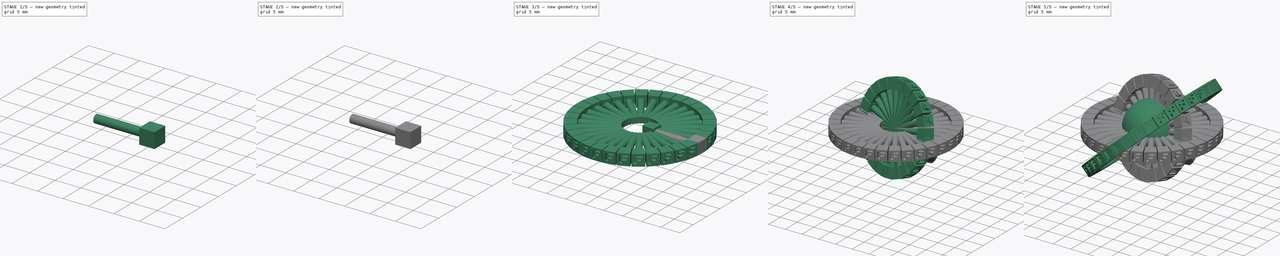
[diagram: build sequence overview — one tinted view per stage of 5, left to right]
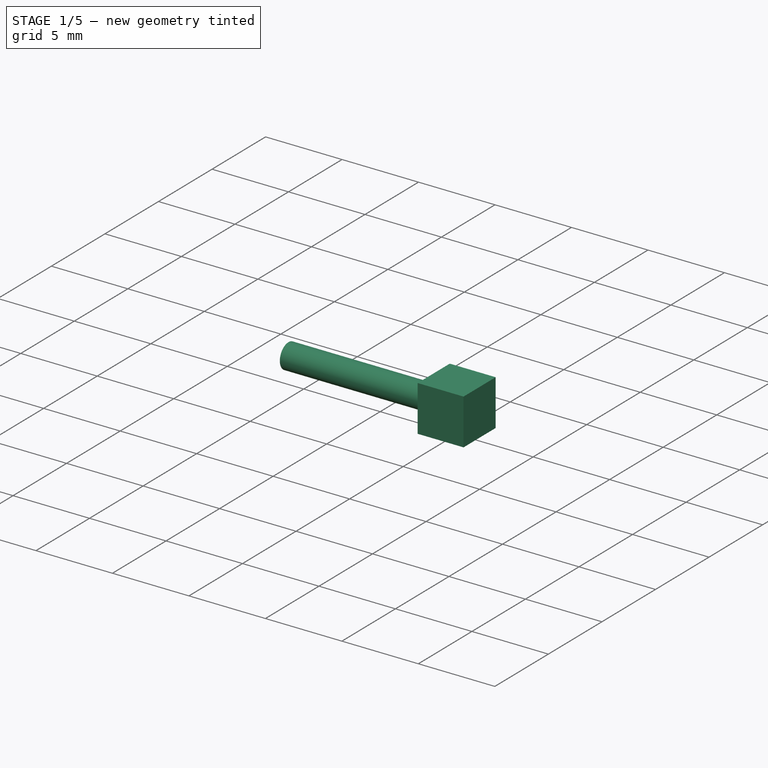
[diagram: stage 1 of 5 — iso view after this stage's code; geometry added in this stage tinted green]
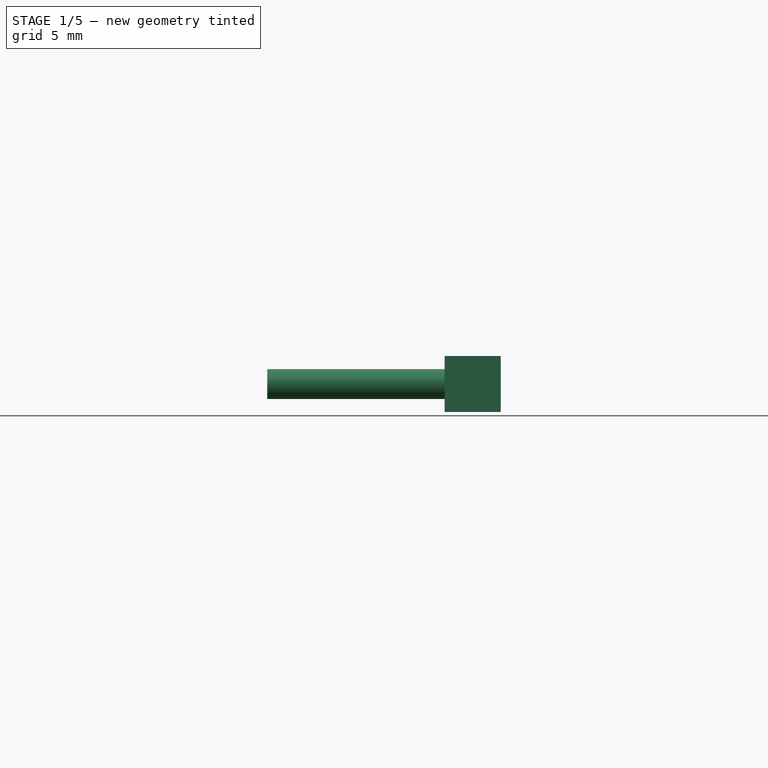
[diagram: stage 1 of 5 — front view after this stage's code; geometry added in this stage tinted green]
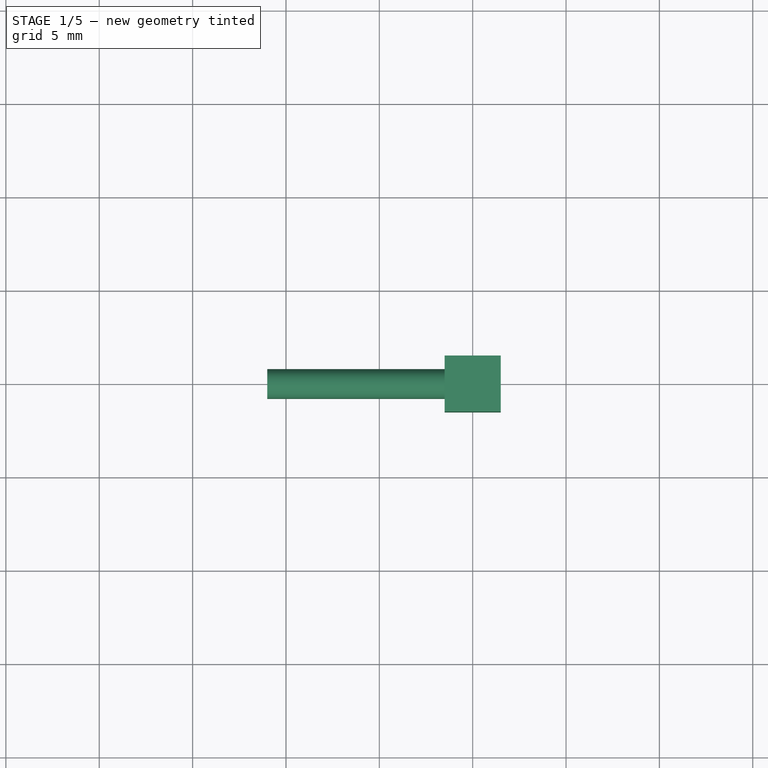
[diagram: stage 1 of 5 — top view after this stage's code; geometry added in this stage tinted green]
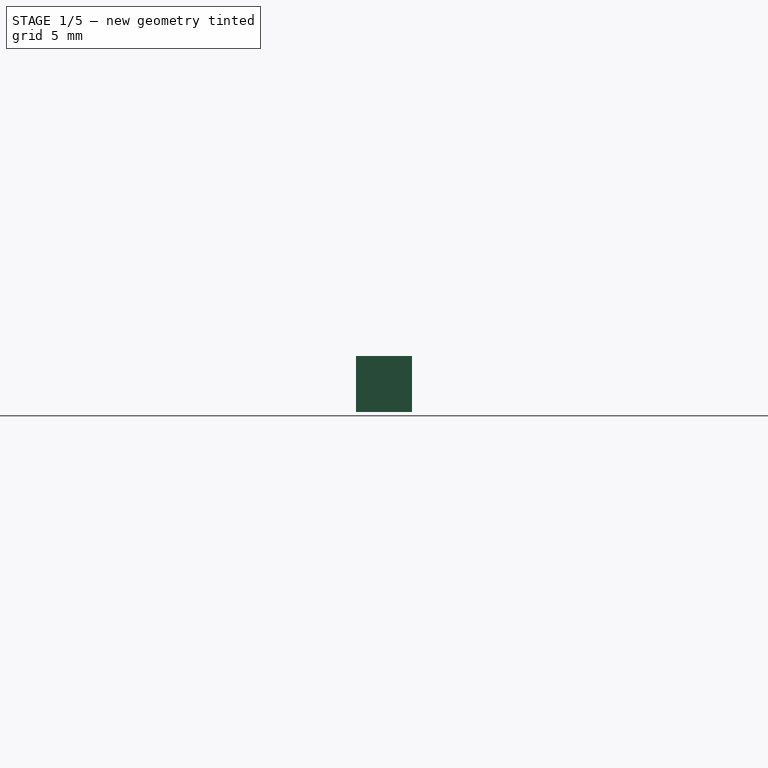
[diagram: stage 1 of 5 — right view after this stage's code; geometry added in this stage tinted green]
FCSTD DOCUMENT  (FreeCAD 0.15R4634 (Git))
Label: llavero-gm
License: All rights reserved
LicenseURL: http://en.wikipedia.org/wiki/All_rights_reserved
objects: Part::Part2DObjectPython×11, Part::FeaturePython×8, Part::Extrusion×5, Part::Cut×5, Part::Box×2, Part::Cylinder×2, Part::MultiFuse×2, Sketcher::SketchObject×2, PartDesign::Pocket×2, Part::Sphere×1, Part::Feature×1, App::DocumentObjectGroup×1
note: 43 computed .brp shape members not serialized (recipe doc carries the construction recipe); baked Part::Feature solids carry a one-line shape summary decoded from their .brp

FEATURE [Part::Cylinder] Cylinder  label="Cilindro"
  Angle = 360
  Height = 10
  Placement = pos=(4,0,0) rot=(0,1,0;1.5708rad)
  Radius = 0.8
FEATURE [Part::Part2DObjectPython] Circle  # Draft 2D object (typed FeaturePython)
  FirstAngle = 0
  LastAngle = 0
  MakeFace = false
  Radius = 3.15913
FEATURE [Part::Part2DObjectPython] Line  # Draft 2D object (typed FeaturePython)
  ChamferSize = 0
  Closed = false
  End = (0,0,1.5)
  FilletRadius = 0
  Length = 16.568
  MakeFace = false
  Points = (2) [(16.5,1.5,1.5),(0,0,1.5)]
  Start = (16.5,1.5,1.5)
FEATURE [Part::Part2DObjectPython] Line002  # Draft 2D object (typed FeaturePython)
  ChamferSize = 0
  Closed = true
  End = (16.5,-1.5,1.5)
  FilletRadius = 0
  Length = 0
  MakeFace = false
  Points = (2) [(16.5,-1.5,1.5),(16.5,-1.5,1.5)]
  Start = (16.5,-1.5,1.5)
FEATURE [Part::Part2DObjectPython] Line003  # Draft 2D object (typed FeaturePython)
  ChamferSize = 0
  Closed = false
  End = (0,0,1.5)
  FilletRadius = 0
  Length = 16.568
  MakeFace = false
  Points = (2) [(16.5,-1.5,1.5),(0,0,1.5)]
  Start = (16.5,-1.5,1.5)
FEATURE [Part::Part2DObjectPython] DWire  # Draft 2D object (typed FeaturePython)
  ChamferSize = 0
  Closed = true
  End = (16.5,1.5,1.5)
  FilletRadius = 0
  Length = 6.2851
  MakeFace = true
  Points = (3) [(13.5,1.22727,1.5),(13.5,1.5,1.5),(16.5,1.5,1.5)]
  Start = (13.5,1.22727,1.5)
FEATURE [Part::Extrusion] Extrusion
  Base = -> DWire
  Dir = (0,0,-3)
  Solid = true
FEATURE [Part::Box] Box001  label="Cubo_0rigen001"
  Height = 3
  Length = 3
  Placement = pos=(13.5,-1.5,-1.5) rot=(0,0,1;0rad)
  Width = 3
FEATURE [Part::Cylinder] Cylinder001  label="Cilindro001"
  Angle = 360
  Height = 10
  Placement = pos=(4,0,0) rot=(0,1,0;1.5708rad)
  Radius = 0.8
FEATURE [Part::MultiFuse] Fusion001  label="FusionOriginal001"
  Shapes = -> [Box001,Cylinder001]
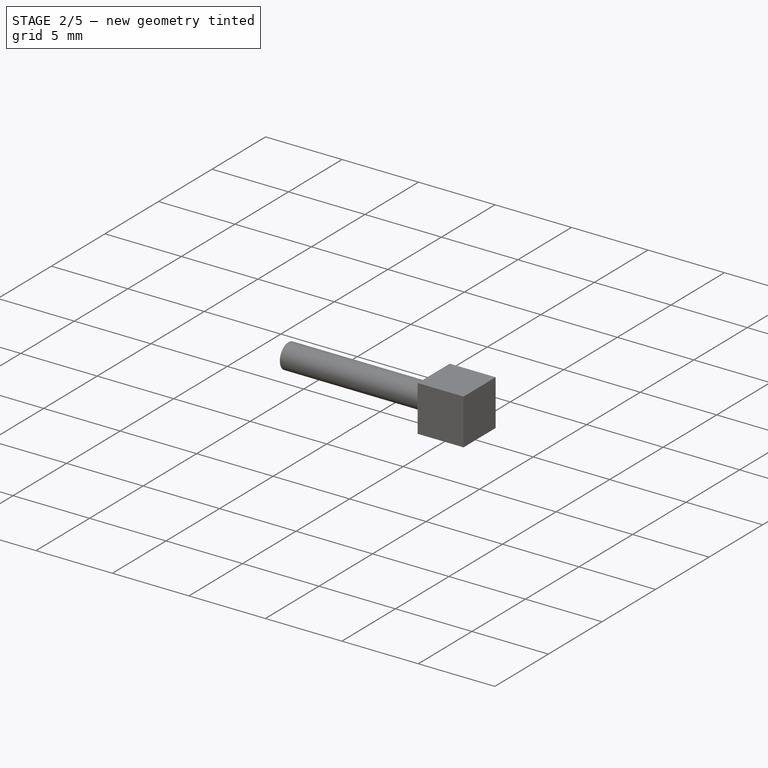
[diagram: stage 2 of 5 — iso view after this stage's code; geometry added in this stage tinted green]
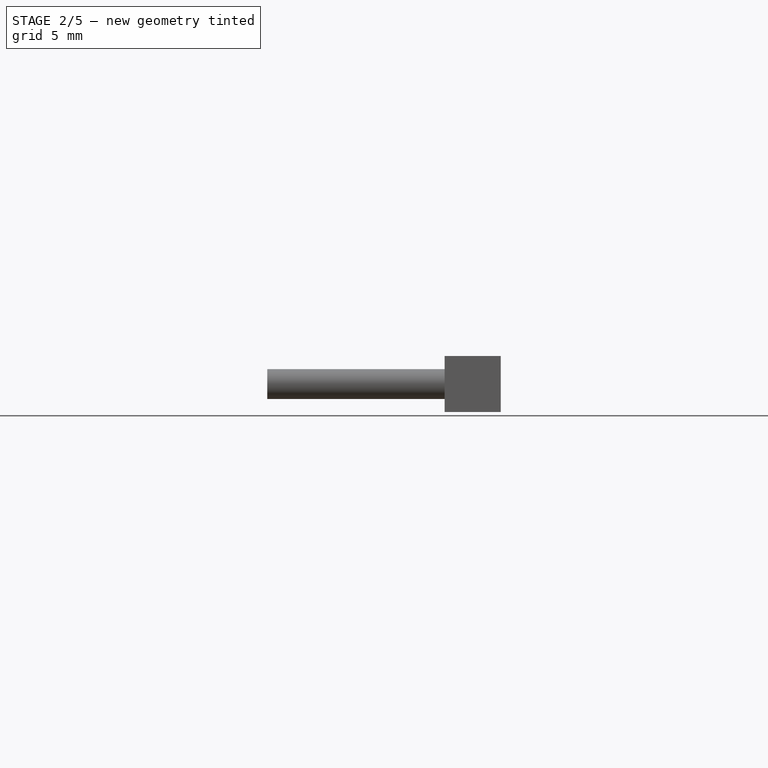
[diagram: stage 2 of 5 — front view after this stage's code; geometry added in this stage tinted green]
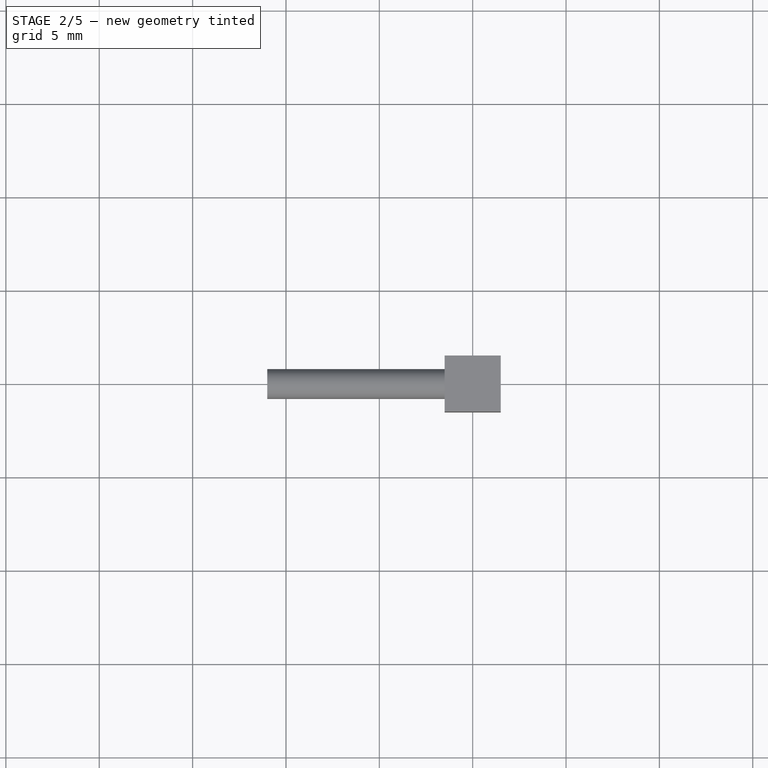
[diagram: stage 2 of 5 — top view after this stage's code; geometry added in this stage tinted green]
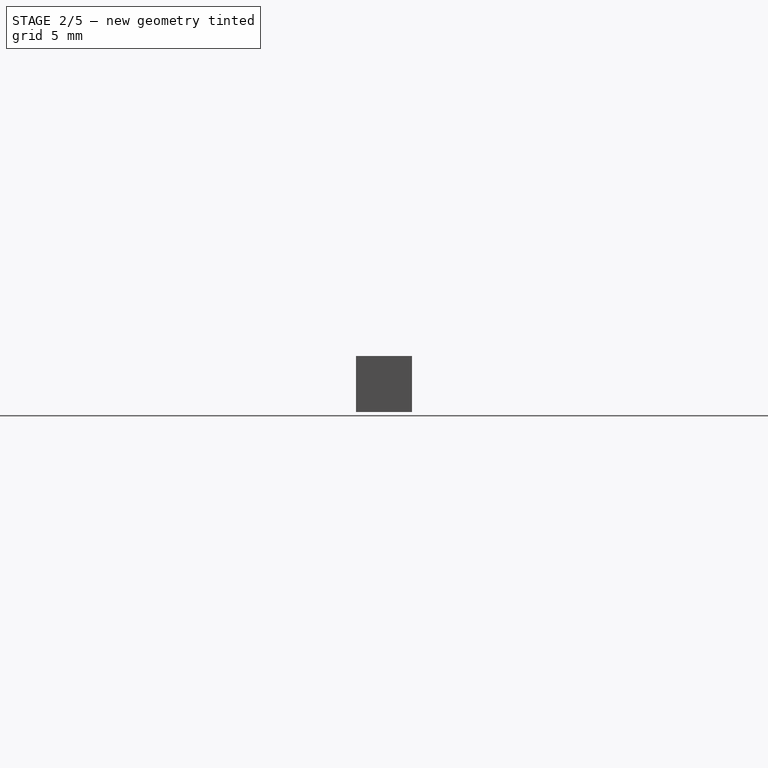
[diagram: stage 2 of 5 — right view after this stage's code; geometry added in this stage tinted green]
FEATURE [Part::Box] Box  label="Cubo_0rigen"
  Height = 3
  Length = 3
  Placement = pos=(13.5,-1.5,-1.5) rot=(0,0,1;0rad)
  Width = 3
FEATURE [Part::MultiFuse] Fusion  label="FusionOriginal"
  Shapes = -> [Box,Cylinder]
FEATURE [Sketcher::SketchObject] Sketch
  Placement = pos=(16.5,0,0) rot=(0.57735,0.57735,0.57735;2.0944rad)
  Support = -> Fusion [Face3]
  sketch-geometry (10):
    g0: LineSegment StartX=-1 StartY=1 StartZ=0 EndX=1 EndY=1 EndZ=0
    g1: LineSegment StartX=1 StartY=1 StartZ=0 EndX=1 EndY=0.594476 EndZ=0
    g2: LineSegment StartX=1 StartY=0.594476 StartZ=0 EndX=-0.324508 EndY=0.594476 EndZ=0
    g3: LineSegment StartX=-0.324508 StartY=0.594476 StartZ=0 EndX=-0.324508 EndY=0.221026 EndZ=0
    g4: LineSegment StartX=-0.324508 StartY=0.221026 StartZ=0 EndX=0.709659 EndY=0.221026 EndZ=0
    g5: LineSegment StartX=0.709659 StartY=0.221026 StartZ=0 EndX=0.603542 EndY=-0.263962 EndZ=0
    g6: LineSegment StartX=0.603542 StartY=-0.263962 StartZ=0 EndX=-0.341985 EndY=-0.263962 EndZ=0
    g7: LineSegment StartX=-0.341985 StartY=-0.263962 StartZ=0 EndX=-0.341985 EndY=-1 EndZ=0
    g8: LineSegment StartX=-0.341985 StartY=-1 StartZ=0 EndX=-1 EndY=-1 EndZ=0
    g9: LineSegment StartX=-1 StartY=-1 StartZ=0 EndX=-1 EndY=1 EndZ=0
  constraints (18):
    c: Horizontal(g0)
    c: Coincident(g0,g1)
    c: Vertical(g1)
    c: Coincident(g1,g2)
    c: Horizontal(g2)
    c: Coincident(g2,g3)
    c: Vertical(g3)
    c: Coincident(g3,g4)
    c: Horizontal(g4)
    c: Coincident(g4,g5)
    c: Coincident(g5,g6)
    c: Horizontal(g6)
    c: Coincident(g6,g7)
    c: Vertical(g7)
    c: Coincident(g7,g8)
    c: Horizontal(g8)
    c: Coincident(g8,g9)
    c: Vertical(g9)
FEATURE [PartDesign::Pocket] Pocket  label="Cube"
  Length = 1
  Sketch = -> Sketch
  Type = 0
FEATURE [Part::Part2DObjectPython] DWire001  # Draft 2D object (typed FeaturePython)
  ChamferSize = 0
  Closed = true
  End = (13.5,-1.22727,1.5)
  FilletRadius = 0
  Length = 6.2851
  MakeFace = true
  Points = (3) [(16.5,-1.5,1.5),(13.5,-1.5,1.5),(13.5,-1.22727,1.5)]
  Start = (16.5,-1.5,1.5)
FEATURE [Part::Extrusion] Extrusion001
  Base = -> DWire001
  Dir = (0,0,-3)
  Solid = true
FEATURE [Part::Cut] Cut
  Base = -> Pocket
  Tool = -> Extrusion
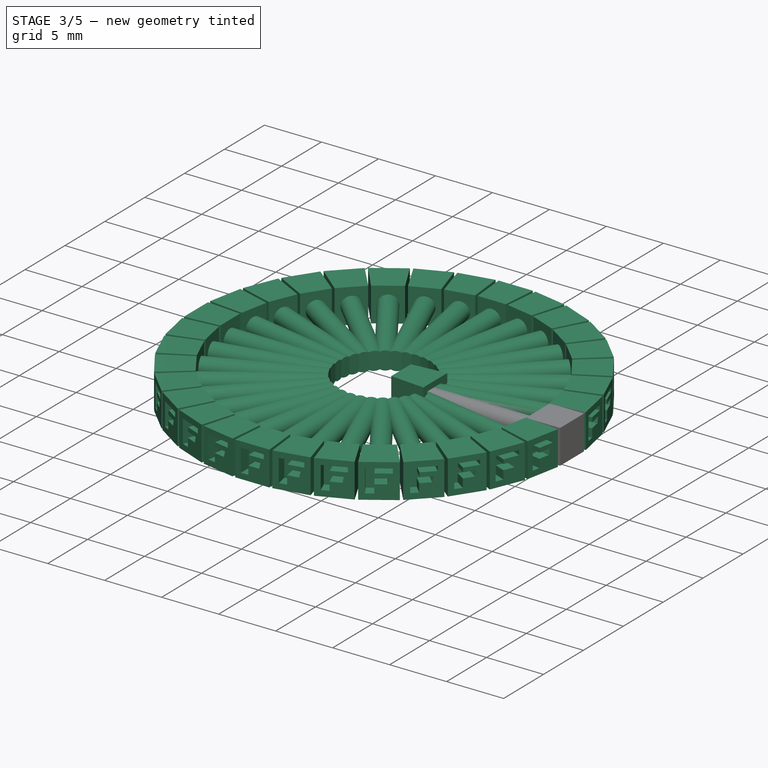
[diagram: stage 3 of 5 — iso view after this stage's code; geometry added in this stage tinted green]
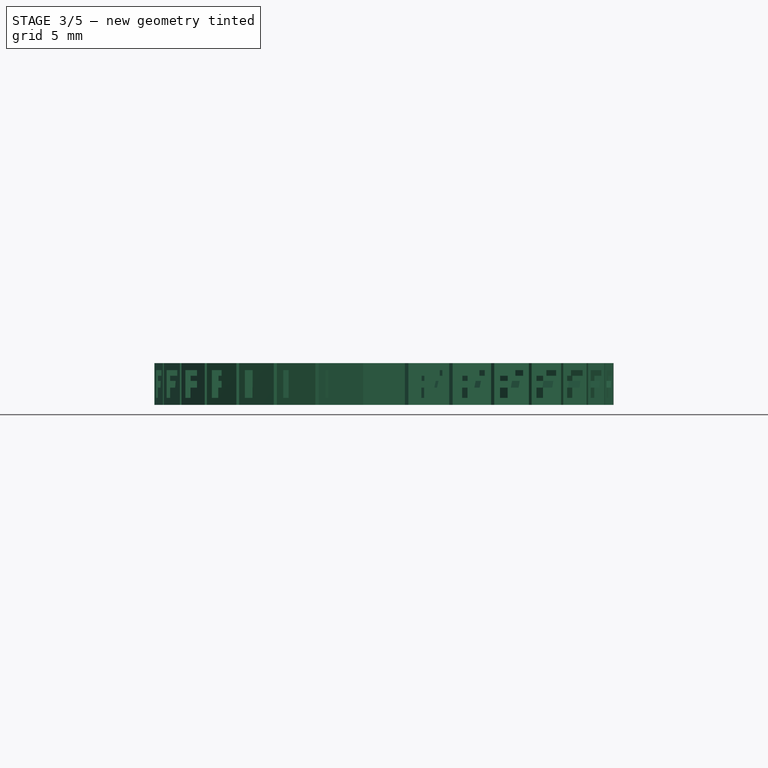
[diagram: stage 3 of 5 — front view after this stage's code; geometry added in this stage tinted green]
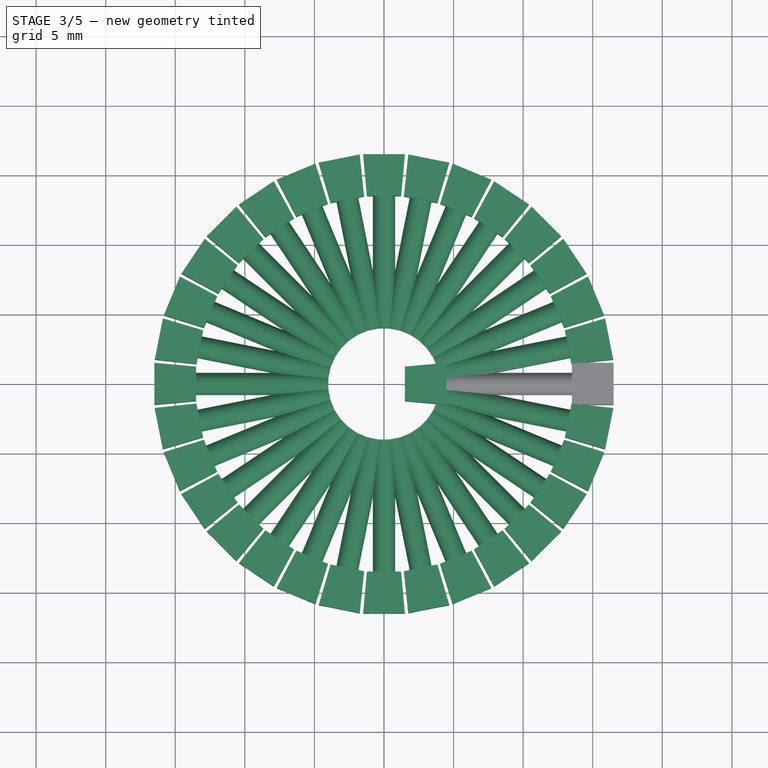
[diagram: stage 3 of 5 — top view after this stage's code; geometry added in this stage tinted green]
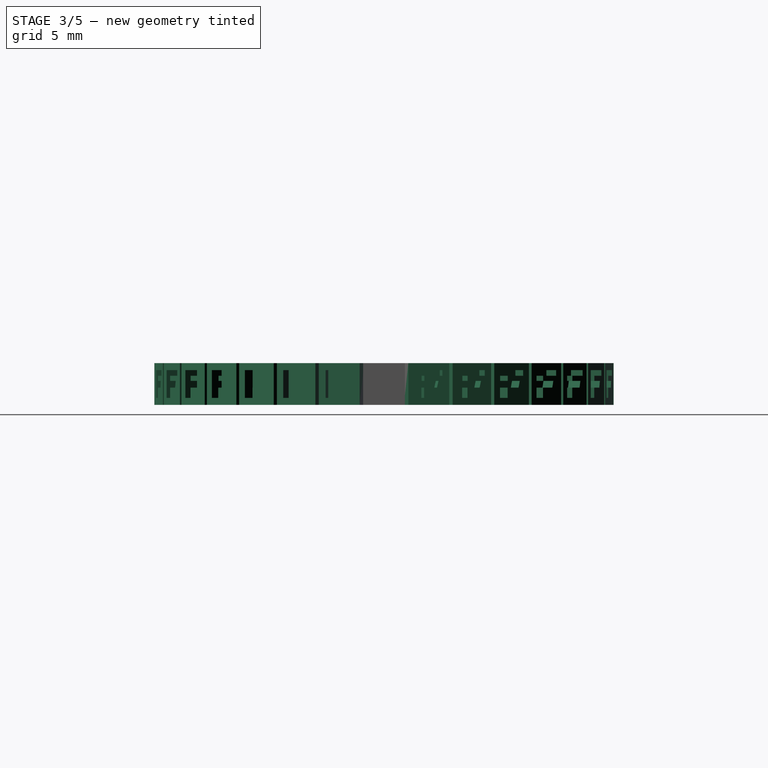
[diagram: stage 3 of 5 — right view after this stage's code; geometry added in this stage tinted green]
FEATURE [Part::Cut] Cut001  label="_Objeto_F_original"
  Base = -> Cut
  Tool = -> Extrusion001
FEATURE [Part::FeaturePython] Clone  label="Clone of _Objeto_F_original"  # Draft clone (typed FeaturePython)
  Objects = -> [Cut001]
  Scale = (1,1,1)
FEATURE [Part::FeaturePython] Clone003  label="Clone of _Objeto_F_original003"  # Draft clone (typed FeaturePython)
  Objects = -> [Cut001]
  Placement = pos=(20,0,0) rot=(0,0,1;0rad)
  Scale = (1,1,1)
FEATURE [Part::Feature] Face
  Placement = pos=(24,0,0) rot=(0,1,0;1.5708rad)
  shape: bbox 2e-07 x 1.6 x 1.6 mm, 1 faces, 0 solids (baked)
FEATURE [Part::Extrusion] Extrusion004
  Base = -> Face
  Dir = (9.5,0,0)
  Solid = true
FEATURE [Part::Cut] Cut004
  Base = -> Clone003
  Placement = pos=(-32,0,0) rot=(0,0,1;0rad)
  Tool = -> Extrusion004
FEATURE [Part::FeaturePython] Array  label="mid Circumference"  # Draft array (typed FeaturePython)
  Angle = 360
  ArrayType = 1
  Axis = (0,0,1)
  Base = -> Clone
  Center = (0,0,0)
  Fuse = false
  IntervalAxis = (0,0,0)
  IntervalX = (1,0,0)
  IntervalY = (0,1,0)
  IntervalZ = (0,0,0)
  NumberPolar = 32
  NumberX = 1
  NumberY = 1
  NumberZ = 1
FEATURE [App::DocumentObjectGroup] Grupo  label="group"
  Group = -> [Fusion,Circle,Line,Line002,Line003,Cut001,Line004,Line005,Point,Circle001,Fusion001]
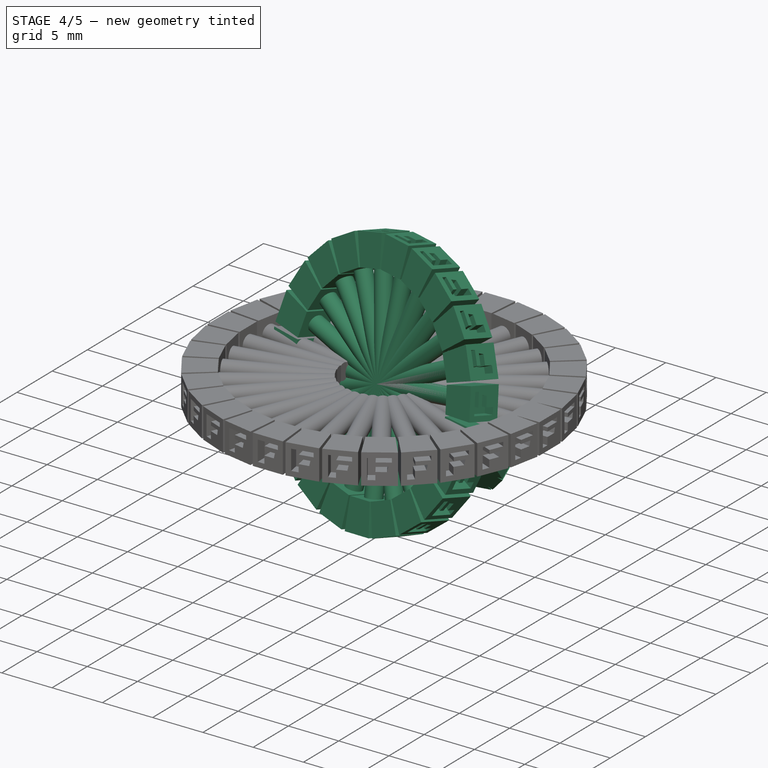
[diagram: stage 4 of 5 — iso view after this stage's code; geometry added in this stage tinted green]
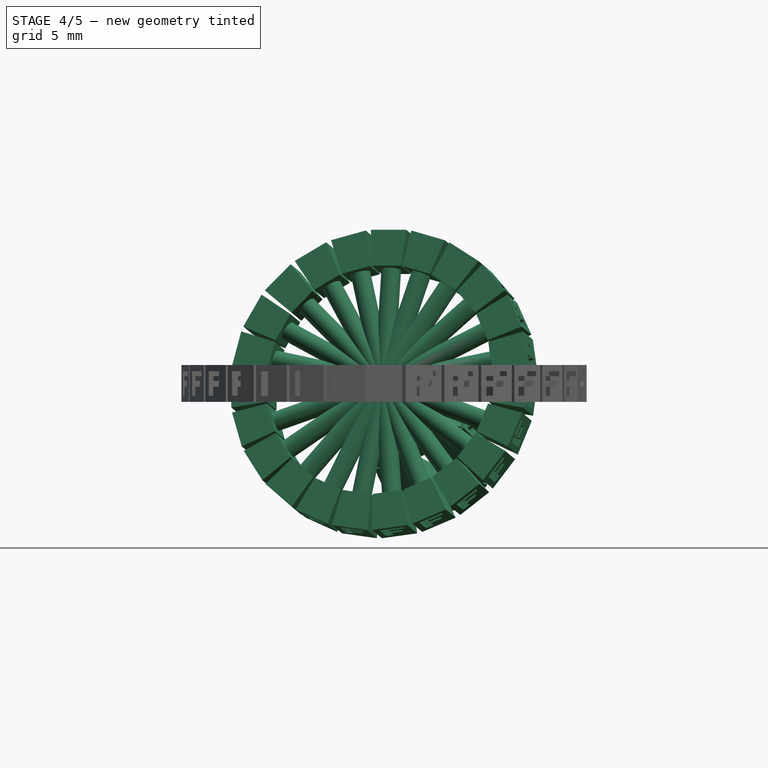
[diagram: stage 4 of 5 — front view after this stage's code; geometry added in this stage tinted green]
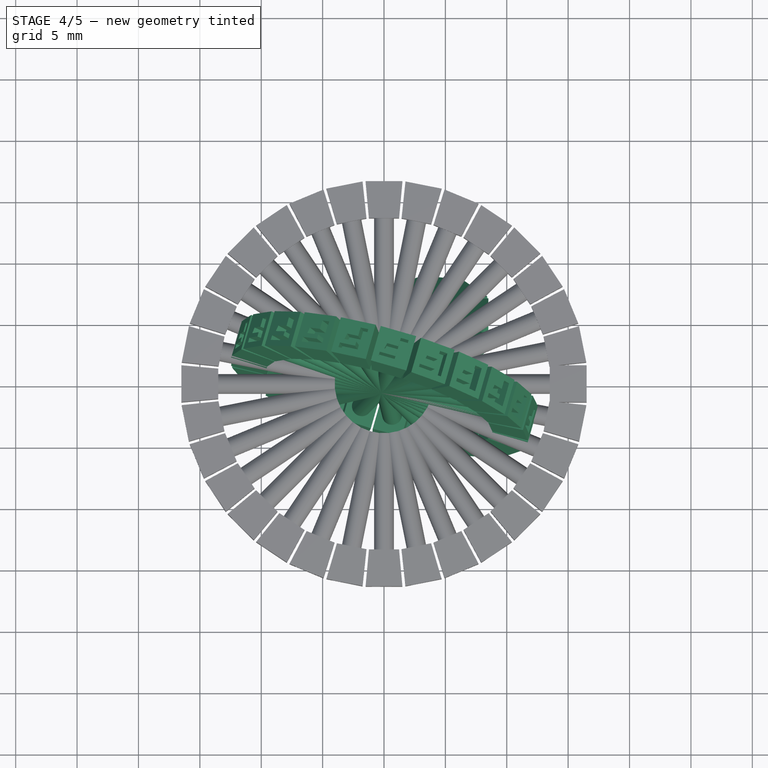
[diagram: stage 4 of 5 — top view after this stage's code; geometry added in this stage tinted green]
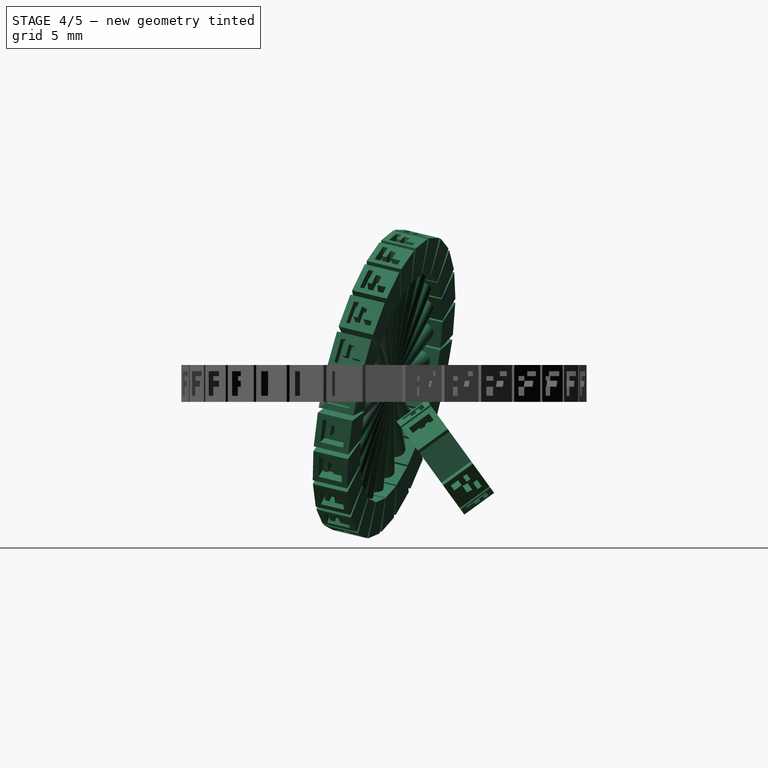
[diagram: stage 4 of 5 — right view after this stage's code; geometry added in this stage tinted green]
FEATURE [Sketcher::SketchObject] Sketch001
  Placement = pos=(16.5,0,0) rot=(0.57735,0.57735,0.57735;2.0944rad)
  Support = -> Fusion001 [Face3]
  sketch-geometry (10):
    g0: LineSegment StartX=-1 StartY=1 StartZ=0 EndX=1 EndY=1 EndZ=0
    g1: LineSegment StartX=1 StartY=1 StartZ=0 EndX=1 EndY=0.594476 EndZ=0
    g2: LineSegment StartX=1 StartY=0.594476 StartZ=0 EndX=-0.324508 EndY=0.594476 EndZ=0
    g3: LineSegment StartX=-0.324508 StartY=0.594476 StartZ=0 EndX=-0.324508 EndY=0.221026 EndZ=0
    g4: LineSegment StartX=-0.324508 StartY=0.221026 StartZ=0 EndX=0.709659 EndY=0.221026 EndZ=0
    g5: LineSegment StartX=0.709659 StartY=0.221026 StartZ=0 EndX=0.603542 EndY=-0.263962 EndZ=0
    g6: LineSegment StartX=0.603542 StartY=-0.263962 StartZ=0 EndX=-0.341985 EndY=-0.263962 EndZ=0
    g7: LineSegment StartX=-0.341985 StartY=-0.263962 StartZ=0 EndX=-0.341985 EndY=-1 EndZ=0
    g8: LineSegment StartX=-0.341985 StartY=-1 StartZ=0 EndX=-1 EndY=-1 EndZ=0
    g9: LineSegment StartX=-1 StartY=-1 StartZ=0 EndX=-1 EndY=1 EndZ=0
  constraints (18):
    c: Horizontal(g0)
    c: Coincident(g0,g1)
    c: Vertical(g1)
    c: Coincident(g1,g2)
    c: Horizontal(g2)
    c: Coincident(g2,g3)
    c: Vertical(g3)
    c: Coincident(g3,g4)
    c: Horizontal(g4)
    c: Coincident(g4,g5)
    c: Coincident(g5,g6)
    c: Horizontal(g6)
    c: Coincident(g6,g7)
    c: Vertical(g7)
    c: Coincident(g7,g8)
    c: Horizontal(g8)
    c: Coincident(g8,g9)
    c: Vertical(g9)
FEATURE [PartDesign::Pocket] Pocket001  label="Cube001"
  Length = 1
  Sketch = -> Sketch001
  Type = 0
FEATURE [Part::Part2DObjectPython] DWire002  # Draft 2D object (typed FeaturePython)
  ChamferSize = 0
  Closed = true
  End = (16.5,1.5,1.5)
  FilletRadius = 0
  Length = 6.2851
  MakeFace = true
  Points = (3) [(13.5,1.22727,1.5),(13.5,1.5,1.5),(16.5,1.5,1.5)]
  Start = (13.5,1.22727,1.5)
FEATURE [Part::Extrusion] Extrusion002
  Base = -> DWire002
  Dir = (0,0,-3)
  Solid = true
FEATURE [Part::FeaturePython] Clone002  label="Clone of _Objeto_F_original002"  # Draft clone (typed FeaturePython)
  Objects = -> [Cut001]
  Placement = pos=(-4,0,0) rot=(0,0,1;0rad)
  Scale = (1,1,1)
FEATURE [Part::FeaturePython] Array002  label="small circumference"  # Draft array (typed FeaturePython)
  Angle = 360
  ArrayType = 1
  Axis = (0,0,1)
  Base = -> Clone002
  Center = (0,0,0)
  Fuse = false
  IntervalAxis = (0,0,0)
  IntervalX = (1,0,0)
  IntervalY = (0,1,0)
  IntervalZ = (0,0,0)
  NumberPolar = 23
  NumberX = 1
  NumberY = 1
  NumberZ = 1
  Placement = pos=(0,0,0) rot=(0.479931,-0.63689,0.603356;1.79128rad)
FEATURE [Part::FeaturePython] Array003  label="support key"  # Draft array (typed FeaturePython)
  Angle = 360
  ArrayType = 1
  Axis = (0,0,1)
  Base = -> Cut004
  Center = (0,0,0)
  Fuse = true
  IntervalAxis = (0,0,0)
  IntervalX = (1,0,0)
  IntervalY = (0,1,0)
  IntervalZ = (0,0,0)
  NumberPolar = 9
  NumberX = 1
  NumberY = 1
  NumberZ = 1
  Placement = pos=(4,5,-6) rot=(-1,0,0;0.942478rad)
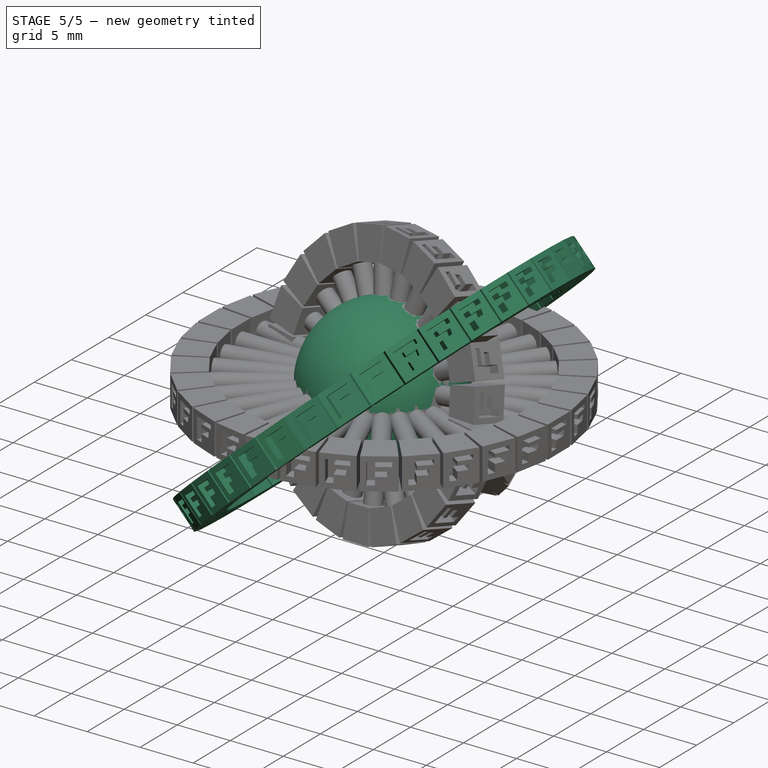
[diagram: stage 5 of 5 — iso view after this stage's code; geometry added in this stage tinted green]
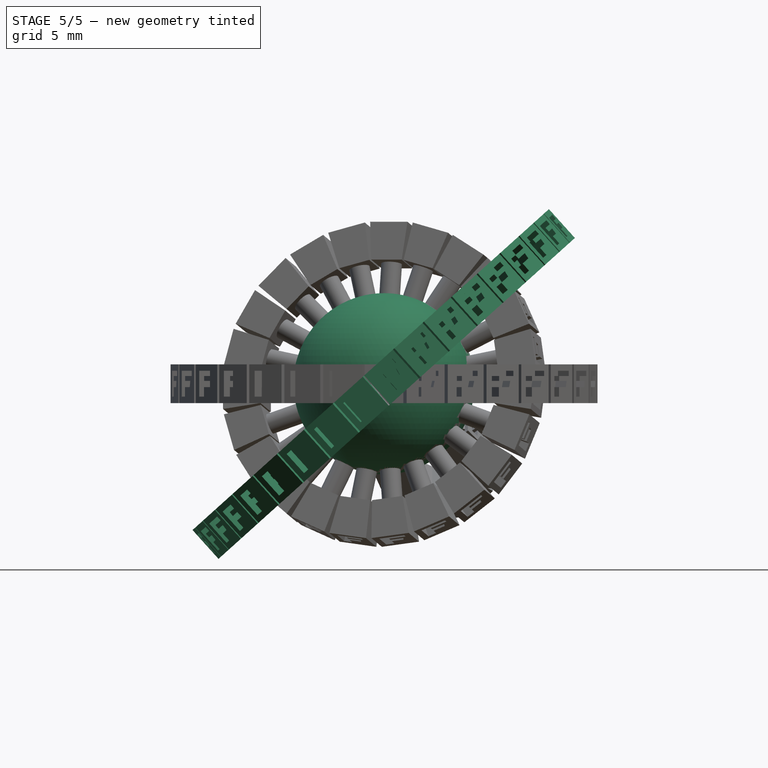
[diagram: stage 5 of 5 — front view after this stage's code; geometry added in this stage tinted green]
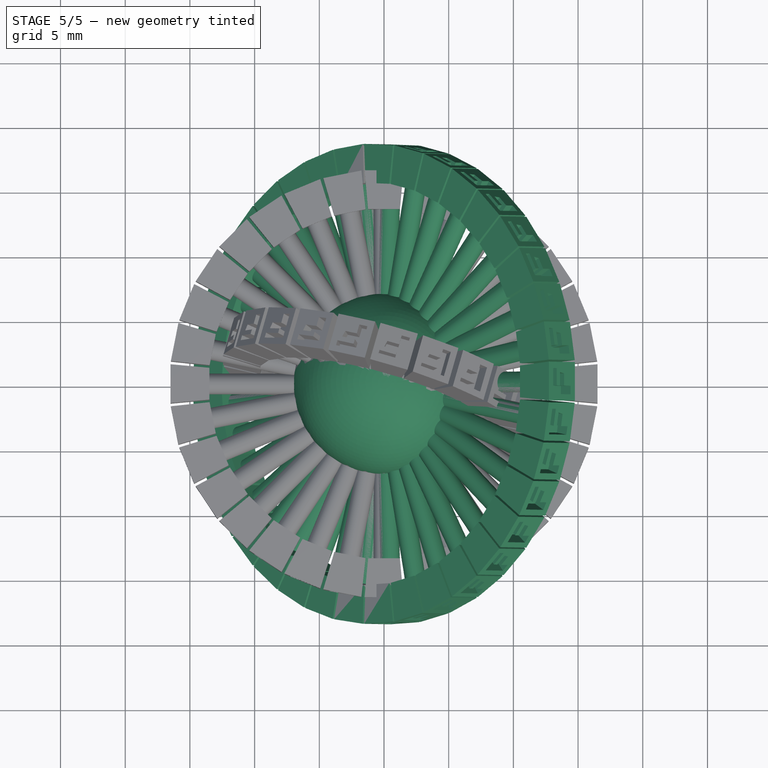
[diagram: stage 5 of 5 — top view after this stage's code; geometry added in this stage tinted green]
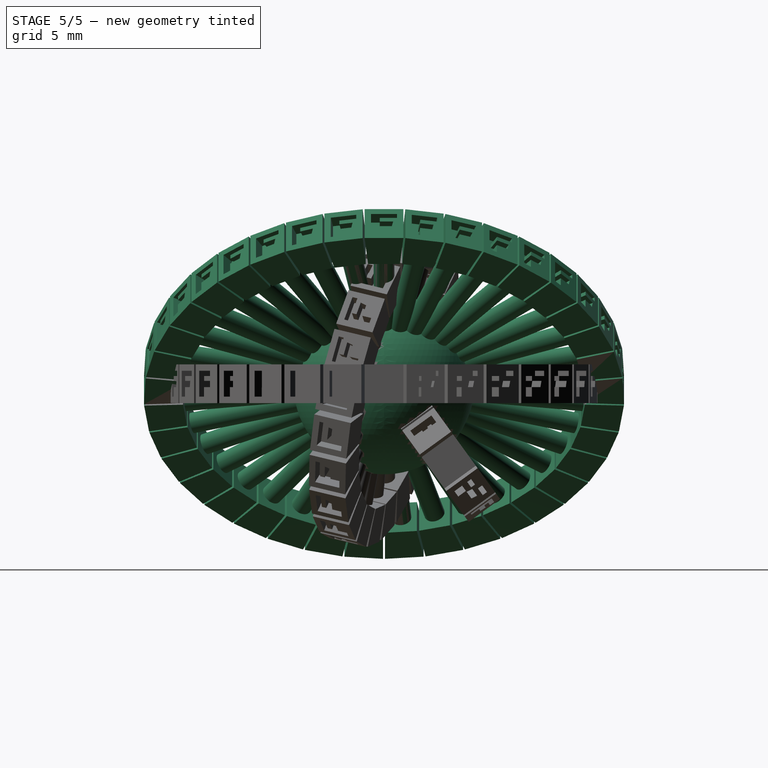
[diagram: stage 5 of 5 — right view after this stage's code; geometry added in this stage tinted green]
FEATURE [Part::Part2DObjectPython] Line004  # Draft 2D object (typed FeaturePython)
  ChamferSize = 0
  Closed = false
  End = (16.5,1.5,-1.5)
  FilletRadius = 0
  Length = 4.24264
  MakeFace = false
  Points = (2) [(16.5,-1.5,1.5),(16.5,1.5,-1.5)]
  Start = (16.5,-1.5,1.5)
FEATURE [Part::Part2DObjectPython] Line005  # Draft 2D object (typed FeaturePython)
  ChamferSize = 0
  Closed = false
  End = (16.5,-1.5,-1.5)
  FilletRadius = 0
  Length = 4.24264
  MakeFace = false
  Points = (2) [(16.5,1.5,1.5),(16.5,-1.5,-1.5)]
  Start = (16.5,1.5,1.5)
FEATURE [Part::FeaturePython] Point  # WARN: FeaturePython — macro-defined, semantics opaque (R4)
  X = 16.5
  Y = 0
  Z = 0
FEATURE [Part::Part2DObjectPython] Circle001  # Draft 2D object (typed FeaturePython)
  FirstAngle = 0
  LastAngle = 0
  MakeFace = false
  Placement = pos=(0,0,0) rot=(1,0,0;1.5708rad)
  Radius = 16.5
FEATURE [Part::Sphere] Sphere  label="sphere"
  Angle1 = -90
  Angle2 = 90
  Angle3 = 360
  Radius = 7
FEATURE [Part::Part2DObjectPython] DWire003  # Draft 2D object (typed FeaturePython)
  ChamferSize = 0
  Closed = true
  End = (13.5,-1.22727,1.5)
  FilletRadius = 0
  Length = 6.2851
  MakeFace = true
  Points = (3) [(16.5,-1.5,1.5),(13.5,-1.5,1.5),(13.5,-1.22727,1.5)]
  Start = (16.5,-1.5,1.5)
FEATURE [Part::Extrusion] Extrusion003
  Base = -> DWire003
  Dir = (0,0,-3)
  Solid = true
FEATURE [Part::Cut] Cut002
  Base = -> Pocket001
  Tool = -> Extrusion002
FEATURE [Part::Cut] Cut003  label="_Objeto_F_original001_anillo G"
  Base = -> Cut002
  Placement = pos=(2,0,0) rot=(0,0,1;0rad)
  Tool = -> Extrusion003
FEATURE [Part::FeaturePython] Array001  label="big circumference"  # Draft array (typed FeaturePython)
  Angle = 360
  ArrayType = 1
  Axis = (0,0,1)
  Base = -> Cut003
  Center = (0,0,0)
  Fuse = false
  IntervalAxis = (0,0,0)
  IntervalX = (1,0,0)
  IntervalY = (0,1,0)
  IntervalZ = (0,0,0)
  NumberPolar = 37
  NumberX = 1
  NumberY = 1
  NumberZ = 1
  Placement = pos=(0,0,0) rot=(0,-1,0;0.733038rad)
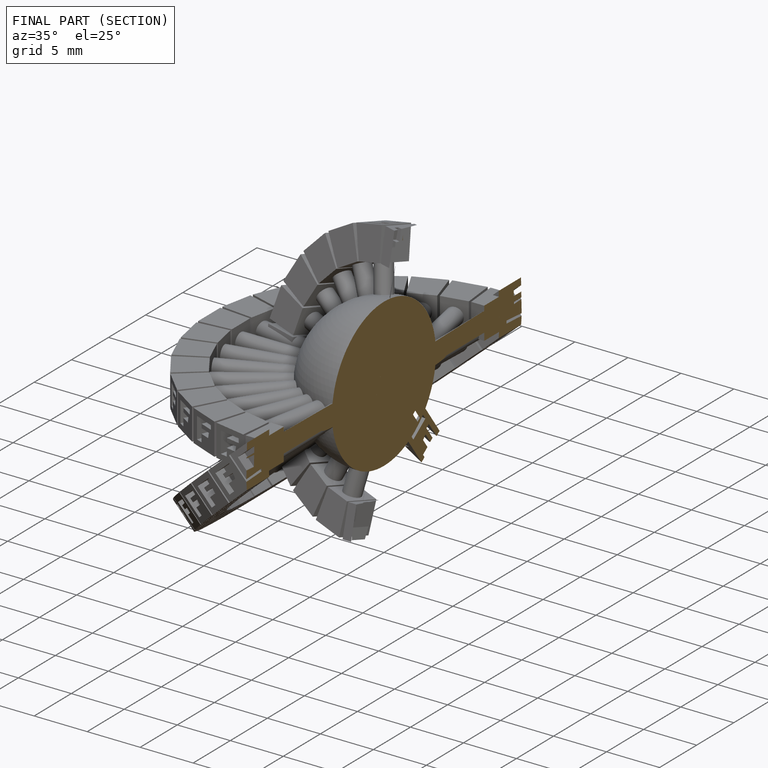
[diagram: finished part — half-section view (interior)]
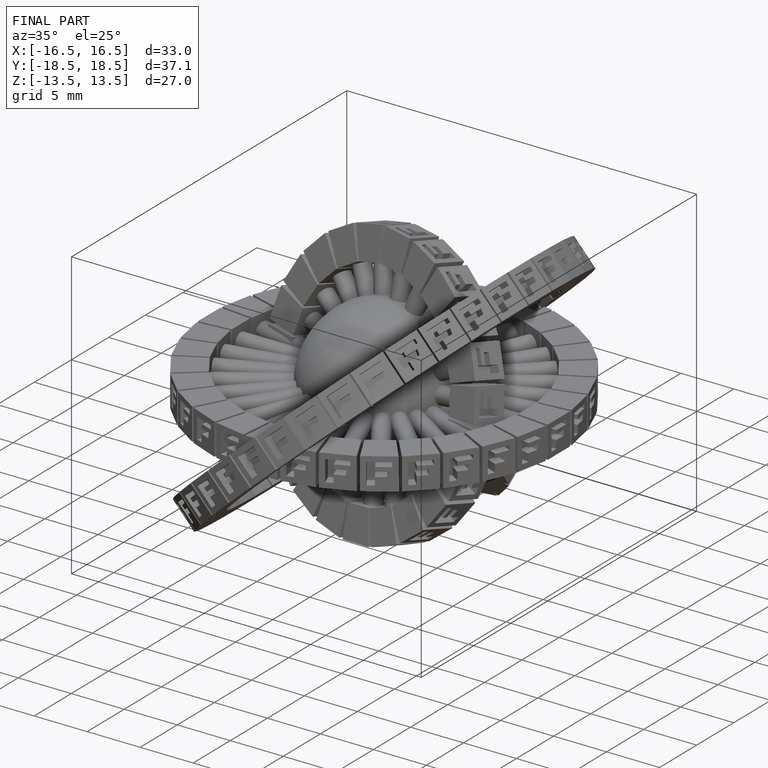
[diagram: finished part — iso view with bounding-box wireframe]
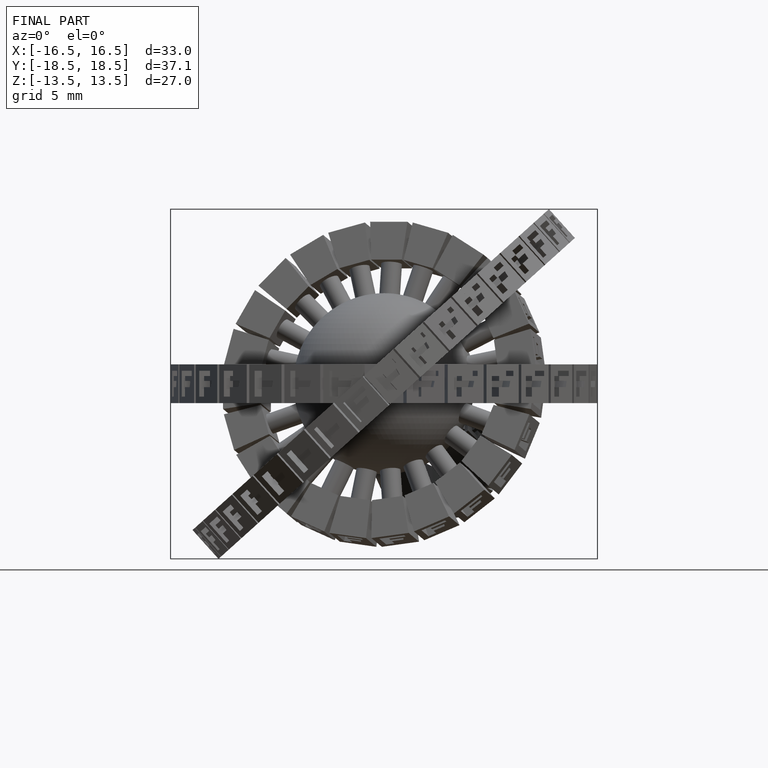
[diagram: finished part — front view with bounding-box wireframe]
